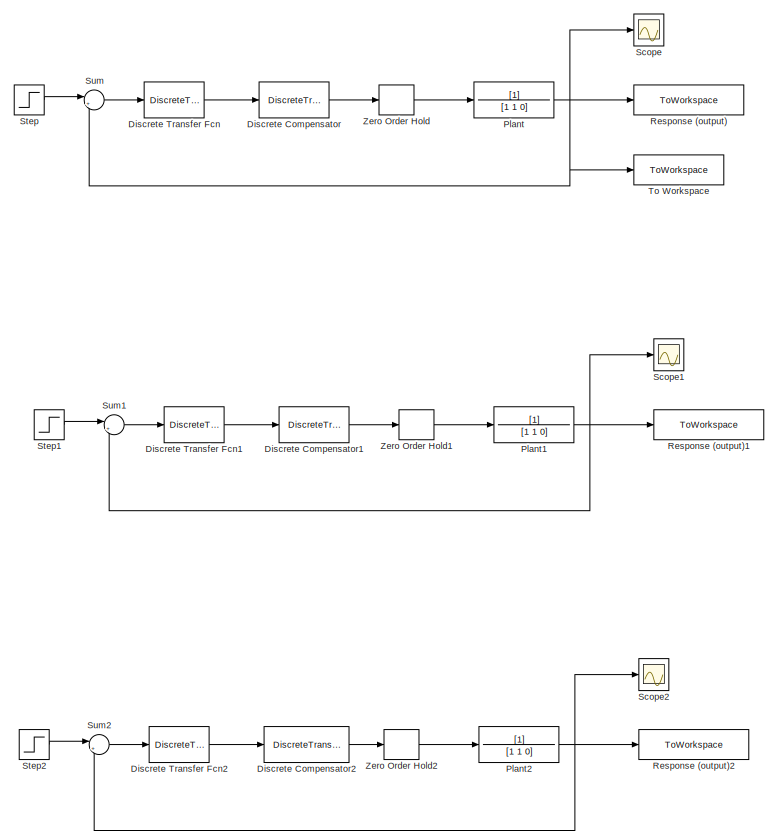
[diagram: root canvas - part 1/2, right side, full height]
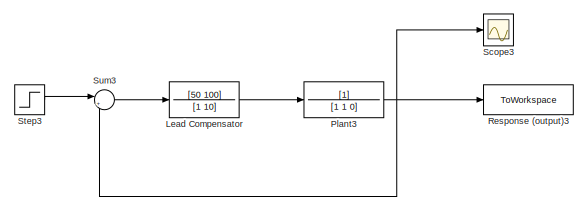
[diagram: root canvas - part 2/2, top left region]
MODEL slx_5baecec93e3b
KIND model
CONFIG AbsTol = auto
CONFIG EnableMultiTasking = off
CONFIG FixedStep = auto
CONFIG MaxStep = auto
CONFIG MinStep = auto
CONFIG RelTol = 1e-3
CONFIG SampleTimeConstraint = Unconstrained
CONFIG SolverName = VariableStepAuto
CONFIG StartTime = 0.0
CONFIG StopTime = 2
BLOCK [DiscreteTransferFcn] Discrete Compensator
  Denominator = [1 1]
  InputPortMap = u0
  Numerator = [50 -30]
  Ports = [1, 1]
  SampleTime = 0.2
BLOCK [DiscreteTransferFcn] Discrete Compensator1
  Denominator = [1 0]
  InputPortMap = u0
  Numerator = [50 -40]
  Ports = [1, 1]
  SampleTime = 0.1
BLOCK [DiscreteTransferFcn] Discrete Compensator2
  Denominator = [1 -0.667]
  InputPortMap = u0
  Numerator = [50 -46.65]
  Ports = [1, 1]
  SampleTime = 0.033
BLOCK [DiscreteTransferFcn] Discrete Transfer Fcn
  Denominator = [1]
  InputPortMap = u0
  Ports = [1, 1]
  SampleTime = 0.2
BLOCK [DiscreteTransferFcn] Discrete Transfer Fcn1
  Denominator = [1]
  InputPortMap = u0
  Ports = [1, 1]
  SampleTime = 0.1
BLOCK [DiscreteTransferFcn] Discrete Transfer Fcn2
  Denominator = [1]
  InputPortMap = u0
  Ports = [1, 1]
  SampleTime = 0.033
BLOCK [TransferFcn] Lead Compensator
  Denominator = [1 10]
  Numerator = [50 100]
BLOCK [TransferFcn] Plant
  Denominator = [1 1 0]
BLOCK [TransferFcn] Plant1
  Denominator = [1 1 0]
BLOCK [TransferFcn] Plant2
  Denominator = [1 1 0]
BLOCK [TransferFcn] Plant3
  Denominator = [1 1 0]
BLOCK [ToWorkspace] Response (output)
  FixptAsFi = on
  MaxDataPoints = inf
  Ports = [1]
  SampleTime = 0.2
  SaveFormat = Timeseries
  VariableName = y_5hz_digital
BLOCK [ToWorkspace] Response (output)1
  FixptAsFi = on
  MaxDataPoints = inf
  Ports = [1]
  SampleTime = 0.1
  SaveFormat = Timeseries
  VariableName = y_10hz_digital
BLOCK [ToWorkspace] Response (output)2
  FixptAsFi = on
  MaxDataPoints = inf
  Ports = [1]
  SampleTime = 0.033
  SaveFormat = Timeseries
  VariableName = y_30hz_digital
BLOCK [ToWorkspace] Response (output)3
  FixptAsFi = on
  MaxDataPoints = inf
  Ports = [1]
  SampleTime = -1
  SaveFormat = Timeseries
  VariableName = y
BLOCK [Scope] Scope
  Floating = off
  NumInputPorts = 1
  Ports = [1]
  ScopeSpecificationString = Simulink.scopes.TimeScopeBlockCfg('CurrentConfiguration', extmgr.ConfigurationSet(extmgr.Configuration('Core','General UI',true),extmgr.Configuration('Core','Source UI',true),extmgr.Configuration('Sources','WiredSimulink',true),extmgr.Configuration('Visuals','Time Domain',true,'SerializedDisplays',{struct('MinYLimReal','-0.19214','MaxYLimReal','1.72922','YLabelReal','','MinYLimMag','0.00000','MaxY...<+1325ch>
BLOCK [Scope] Scope1
  Floating = off
  NumInputPorts = 1
  Ports = [1]
  ScopeSpecificationString = Simulink.scopes.TimeScopeBlockCfg('CurrentConfiguration', extmgr.ConfigurationSet(extmgr.Configuration('Core','General UI',true),extmgr.Configuration('Core','Source UI',true),extmgr.Configuration('Sources','WiredSimulink',true,'DataLoggingVariableName','ScopeData1'),extmgr.Configuration('Visuals','Time Domain',true,'SerializedDisplays',{struct('MinYLimReal','-0.15123','MaxYLimReal','1.36103','YLab...<+1365ch>
BLOCK [Scope] Scope2
  Floating = off
  NumInputPorts = 1
  Ports = [1]
  ScopeSpecificationString = Simulink.scopes.TimeScopeBlockCfg('CurrentConfiguration', extmgr.ConfigurationSet(extmgr.Configuration('Core','General UI',true),extmgr.Configuration('Core','Source UI',true),extmgr.Configuration('Sources','WiredSimulink',true,'DataLoggingVariableName','ScopeData2'),extmgr.Configuration('Visuals','Time Domain',true,'SerializedDisplays',{struct('MinYLimReal','-0.14933','MaxYLimReal','1.34401','YLab...<+1364ch>
BLOCK [Scope] Scope3
  Floating = off
  NumInputPorts = 1
  Ports = [1]
  ScopeSpecificationString = Simulink.scopes.TimeScopeBlockCfg('CurrentConfiguration', extmgr.ConfigurationSet(extmgr.Configuration('Core','General UI',true),extmgr.Configuration('Core','Source UI',true),extmgr.Configuration('Sources','WiredSimulink',true,'DataLoggingVariableName','ScopeData3'),extmgr.Configuration('Visuals','Time Domain',true,'SerializedDisplays',{struct('MinYLimReal','-0.14801','MaxYLimReal','1.33211','YLab...<+1365ch>
BLOCK [Step] Step
  SampleTime = 0
  Time = 0
BLOCK [Step] Step1
  SampleTime = 0
  Time = 0
BLOCK [Step] Step2
  SampleTime = 0
  Time = 0
BLOCK [Step] Step3
  SampleTime = 0
  Time = 0
BLOCK [Sum] Sum
  Inputs = |+-
  Ports = [2, 1]
BLOCK [Sum] Sum1
  Inputs = |+-
  Ports = [2, 1]
BLOCK [Sum] Sum2
  Inputs = |+-
  Ports = [2, 1]
BLOCK [Sum] Sum3
  Inputs = |+-
  Ports = [2, 1]
BLOCK [ToWorkspace] To Workspace
  FixptAsFi = on
  MaxDataPoints = inf
  Ports = [1]
  SampleTime = -1
  SaveFormat = Timeseries
  VariableName = y_5hz_cont
BLOCK [ZeroOrderHold] Zero Order Hold
  SampleTime = 0.2
BLOCK [ZeroOrderHold] Zero Order Hold1
  SampleTime = 0.1
BLOCK [ZeroOrderHold] Zero Order Hold2
  SampleTime = 0.033
LINE Discrete Compensator1:1 -> Zero Order Hold1:1
LINE Discrete Compensator2:1 -> Zero Order Hold2:1
LINE Discrete Compensator:1 -> Zero Order Hold:1
LINE Discrete Transfer Fcn1:1 -> Discrete Compensator1:1
LINE Discrete Transfer Fcn2:1 -> Discrete Compensator2:1
LINE Discrete Transfer Fcn:1 -> Discrete Compensator:1
LINE Lead Compensator:1 -> Plant3:1
NET Plant1:1 -> Response (output)1:1, Scope1:1, Sum1:2
NET Plant2:1 -> Response (output)2:1, Scope2:1, Sum2:2
NET Plant3:1 -> Response (output)3:1, Scope3:1, Sum3:2
NET Plant:1 -> Response (output):1, Scope:1, Sum:2, To Workspace:1
LINE Step1:1 -> Sum1:1
LINE Step2:1 -> Sum2:1
LINE Step3:1 -> Sum3:1
LINE Step:1 -> Sum:1
LINE Sum1:1 -> Discrete Transfer Fcn1:1
LINE Sum2:1 -> Discrete Transfer Fcn2:1
LINE Sum3:1 -> Lead Compensator:1
LINE Sum:1 -> Discrete Transfer Fcn:1
LINE Zero Order Hold1:1 -> Plant1:1
LINE Zero Order Hold2:1 -> Plant2:1
LINE Zero Order Hold:1 -> Plant:1
note: NET lines group one-source signal fan-out (src -> all destinations, sorted); 1:1 wires keep LINE
